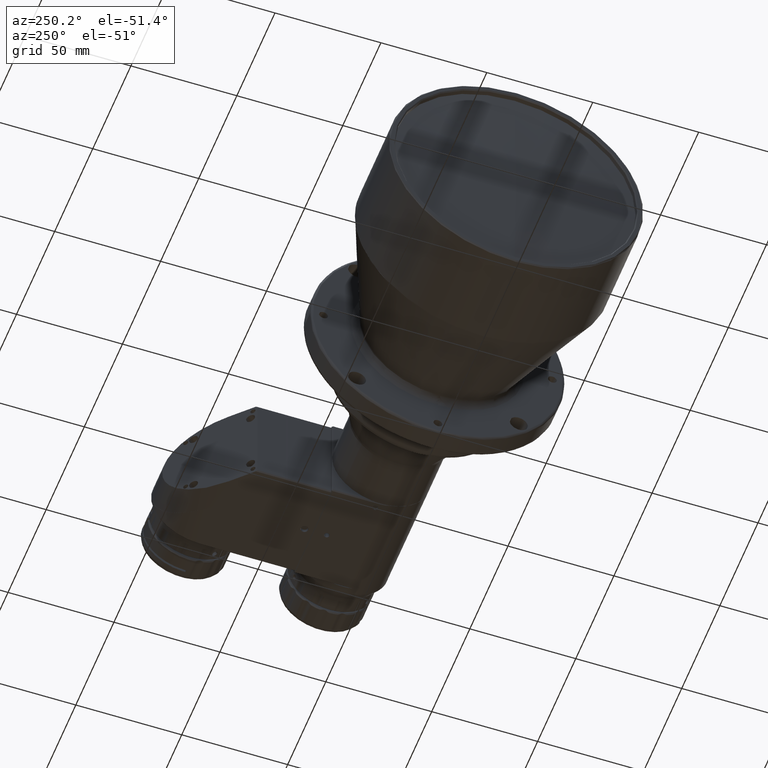
[diagram: clean part render]
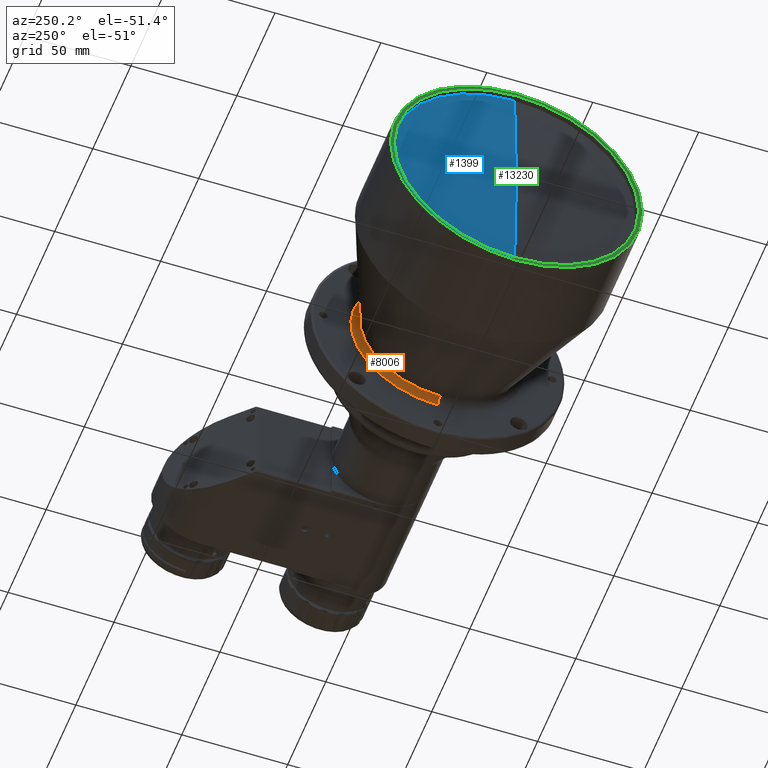
[diagram: same view with three faces highlighted in distinct colors, each labeled with its STEP entity id]
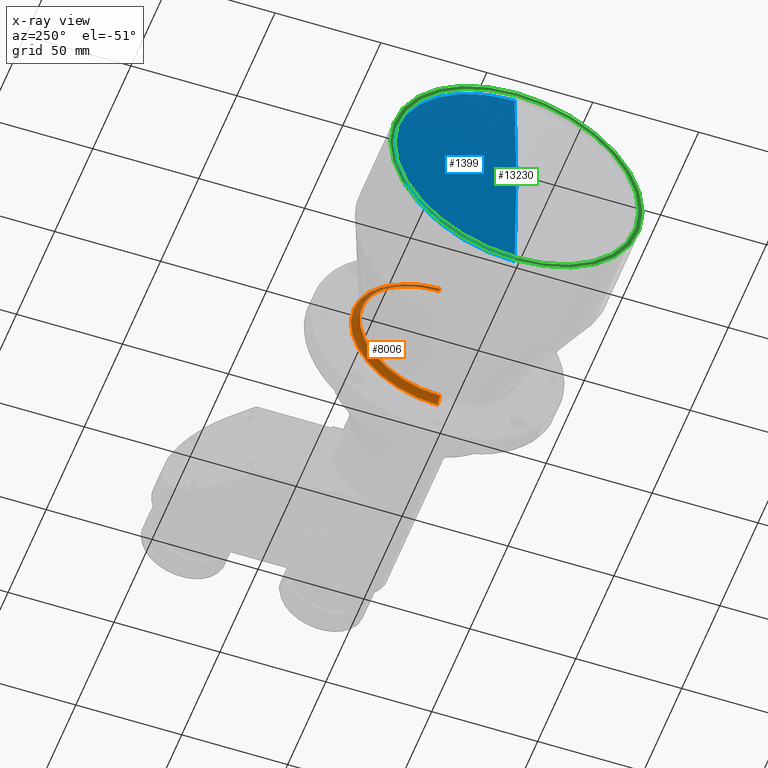
[diagram: x-ray of the same camera — body ghosted, the three highlighted faces saturated]
A machine part, auxiliary view with three faces highlighted in distinct colors.
The next image is the same camera in x-ray (body ghosted, the three faces saturated) — at least one of them is partly hidden behind the body in this view.
Their STEP definitions:

[orange] entity #8006 — the highlighted face is a freeform B-spline surface patch.
#14 = CARTESIAN_POINT ( 'NONE',  ( 103.0000000000000100, 12.45186041448453200, 39.16249284849838800 ) ) ;
#40 = CARTESIAN_POINT ( 'NONE',  ( 100.0000000004045800, 0.0000000000000000000, 0.0000000000000000000 ) ) ;
#466 = CARTESIAN_POINT ( 'NONE',  ( 103.0000000000000300, 11.07125925120583800, -39.57355976065940700 ) ) ;
#722 = CARTESIAN_POINT ( 'NONE',  ( 103.0000000000000000, 21.10166652494948300, -35.26102995712306400 ) ) ;
#792 = CARTESIAN_POINT ( 'NONE',  ( 103.0000000000000100, 33.00234591523061300, -24.48905322541276100 ) ) ;
#861 = CARTESIAN_POINT ( 'NONE',  ( 103.0000000000000300, 36.23421431976152700, -19.38282694814504800 ) ) ;
#928 = CARTESIAN_POINT ( 'NONE',  ( 102.9999999999999900, 39.44665265685453900, -11.52737047924346000 ) ) ;
#994 = CARTESIAN_POINT ( 'NONE',  ( 103.0000000000000300, 21.30325764352278700, -35.13947384457446100 ) ) ;
#1054 = CARTESIAN_POINT ( 'NONE',  ( 103.0000000000000100, 36.28161087332583900, 19.29395844985115700 ) ) ;
#1120 = CARTESIAN_POINT ( 'NONE',  ( 103.0000000000000100, 34.17222401441142000, 22.82407409846492600 ) ) ;
#1149 = VERTEX_POINT ( 'NONE', #16008 ) ;
#1187 = CARTESIAN_POINT ( 'NONE',  ( 103.0000000000000400, 41.09267363664103100, -1.711829738698872600 ) ) ;
#1230 = CARTESIAN_POINT ( 'NONE',  ( 103.1896612680000100, 78.70507050799999100, 39.35253525400000300 ) ) ;
#1259 = CARTESIAN_POINT ( 'NONE',  ( 103.0000000000000100, 29.73031258262090000, 28.38427449937387300 ) ) ;
#1322 = CARTESIAN_POINT ( 'NONE',  ( 103.0000000000000100, 36.35405436380387600, 19.15711342407894700 ) ) ;
#1387 = CARTESIAN_POINT ( 'NONE',  ( 103.0000000000000100, 5.486805652091391000, 40.72474562499926500 ) ) ;
#1451 = CARTESIAN_POINT ( 'NONE',  ( 103.0000000000000100, 21.58831990666038800, 34.96521501237167200 ) ) ;
#1514 = CARTESIAN_POINT ( 'NONE',  ( 103.0000000000000100, 26.58237345541844100, 31.35047855595357500 ) ) ;
#1587 = CARTESIAN_POINT ( 'NONE',  ( 103.0000000000000300, 18.99735675195406900, 36.44017620300168400 ) ) ;
#1644 = CARTESIAN_POINT ( 'NONE',  ( 102.9999999999999900, 11.62455653627539400, 39.41422944751501200 ) ) ;
#1914 = CARTESIAN_POINT ( 'NONE',  ( 103.0000000000000400, 5.438775493817500400, -40.73118799082953200 ) ) ;
#1970 = CARTESIAN_POINT ( 'NONE',  ( 103.0000000000000000, 11.39736278211128200, -39.48052187633278700 ) ) ;
#2164 = CARTESIAN_POINT ( 'NONE',  ( 103.0000000000000300, 5.398206862634004300, -40.73658346149758100 ) ) ;
#2228 = CARTESIAN_POINT ( 'NONE',  ( 103.0000000000000300, 21.90981310867260100, -34.77091790255032300 ) ) ;
#2301 = CARTESIAN_POINT ( 'NONE',  ( 103.0000000000000100, 33.39526951408179700, -23.94640622814623400 ) ) ;
#2370 = CARTESIAN_POINT ( 'NONE',  ( 103.0000000000000400, 37.18699130427030000, -17.51887638046399700 ) ) ;
#2434 = CARTESIAN_POINT ( 'NONE',  ( 103.0000000000000100, 38.17064534091534300, -15.21939089335085900 ) ) ;
#2498 = CARTESIAN_POINT ( 'NONE',  ( 103.0000000000000300, 25.21743819301194400, -32.45280314941988600 ) ) ;
#2567 = CARTESIAN_POINT ( 'NONE',  ( 103.0000000000000000, 35.88467425282466600, 20.03823719307584000 ) ) ;
#2638 = CARTESIAN_POINT ( 'NONE',  ( 103.0000000000000300, 31.17981225498672500, 26.76649114846738100 ) ) ;
#2703 = CARTESIAN_POINT ( 'NONE',  ( 103.0000000000000300, 33.89350075325141600, 23.23451566019590300 ) ) ;
#2739 = CARTESIAN_POINT ( 'NONE',  ( 102.9850124960000000, 0.0000000000000000000, -41.39219680000000800 ) ) ;
#2768 = CARTESIAN_POINT ( 'NONE',  ( 103.0000000000000300, 39.85403728077478300, 10.01380233816537100 ) ) ;
#2836 = CARTESIAN_POINT ( 'NONE',  ( 103.0000000000000000, 41.05274315597169700, 2.137426064923182900 ) ) ;
#2972 = CARTESIAN_POINT ( 'NONE',  ( 103.0000000000000100, 21.48154941155780400, 35.03076346346026100 ) ) ;
#3033 = CARTESIAN_POINT ( 'NONE',  ( 103.0000000000000100, 5.678845890035667300, 40.69849810436001300 ) ) ;
#3094 = CARTESIAN_POINT ( 'NONE',  ( 103.0000000000000000, 11.97973819283290300, 39.30814703153042400 ) ) ;
#3156 = CARTESIAN_POINT ( 'NONE',  ( 103.0000000000000100, 24.90089570934023700, 32.68896633621251600 ) ) ;
#3425 = CARTESIAN_POINT ( 'NONE',  ( 102.9999999999999900, 14.48388822979796100, -38.45562755022420000 ) ) ;
#3473 = ORIENTED_EDGE ( 'NONE', *, *, #5866, .F. ) ;
#3542 = CARTESIAN_POINT ( 'NONE',  ( 103.0000000000000400, 5.426495519375011500, -40.73282501202700000 ) ) ;
#3599 = CARTESIAN_POINT ( 'NONE',  ( 103.0000000000000100, 10.63569206464239200, -39.69396634371084100 ) ) ;
#3734 = CARTESIAN_POINT ( 'NONE',  ( 103.0000000000000000, 21.27122698101970100, -35.15886957330557300 ) ) ;
#3805 = CARTESIAN_POINT ( 'NONE',  ( 103.0000000000000400, 34.23287492760753300, -22.74535213777725000 ) ) ;
#3877 = CARTESIAN_POINT ( 'NONE',  ( 103.0000000000000100, 26.04299384884290100, -31.79996220063489800 ) ) ;
#3944 = CARTESIAN_POINT ( 'NONE',  ( 103.0000000000000300, 17.87221102209973000, -37.00263622422522800 ) ) ;
#4003 = CARTESIAN_POINT ( 'NONE',  ( 103.0000000000000000, 17.97133642652764600, -36.95459786320830600 ) ) ;
#4071 = CARTESIAN_POINT ( 'NONE',  ( 103.0000000000000000, 40.56516480064825500, -6.587552438959387600 ) ) ;
#4134 = CARTESIAN_POINT ( 'NONE',  ( 103.0000000000000100, 39.27721492894020400, 12.13005752073446600 ) ) ;
#4195 = CARTESIAN_POINT ( 'NONE',  ( 103.0000000000000100, 28.02392584311522900, 30.05447260523092700 ) ) ;
#4271 = CARTESIAN_POINT ( 'NONE',  ( 103.0000000000000100, 38.00532072134190300, 15.64847050590658900 ) ) ;
#4338 = CARTESIAN_POINT ( 'NONE',  ( 103.0000000000000100, 33.80809263185116700, 23.35861355072685800 ) ) ;
#4350 = CARTESIAN_POINT ( 'NONE',  ( 102.9999999990893800, 0.0000000000000000000, -39.33533723651777300 ) ) ;
#4412 = CARTESIAN_POINT ( 'NONE',  ( 102.9999999999999900, 22.33043450464212000, 34.49866224046353100 ) ) ;
#4475 = CARTESIAN_POINT ( 'NONE',  ( 103.0000000000000100, 15.68894663627496100, 37.98189142994136300 ) ) ;
#4536 = CARTESIAN_POINT ( 'NONE',  ( 103.0000000000000000, 5.518822618848132000, 40.72041902166068900 ) ) ;
#4601 = CARTESIAN_POINT ( 'NONE',  ( 103.0000000000000100, 20.79777431411249500, 35.44663539392993800 ) ) ;
#4665 = CARTESIAN_POINT ( 'NONE',  ( 102.9999999999999900, 25.14490682120990800, 32.50227002406059300 ) ) ;
#4695 = B_SPLINE_CURVE_WITH_KNOTS ( 'NONE', 3,
 ( #10918, #4940, #6570, #6453, #9656, #12559, #6634, #6508, #2164, #3542, #1914, #4997, #17261, #14067, #3599, #466, #17063, #1970, #5116, #17128, #8096, #11114, #12434, #12629, #8227, #3425, #12682, #14200, #5185, #7980, #15734, #18524, #10990, #12501, #3944, #14475, #4003, #18848, #6763, #5385, #5507, #722, #9860, #3734, #994, #2228, #11240, #12754, #7035, #8297, #14275, #15869, #8551, #2498, #3877, #9794, #8365, #11308, #17596, #16064, #18984, #15939, #5325, #6971, #11450, #5253, #19107, #6896, #15802, #17460, #17331, #792, #2301, #12824, #11516, #17527, #18919, #3805, #19047, #14341, #14546, #6835, #9992, #17395, #861, #11374, #2370, #5446, #15997, #2434, #12896, #14411, #8494, #8432, #9924, #928, #12959, #13024, #16337, #13294, #8758, #14685, #4071, #14616, #5853, #10196, #11787, #1187, #11847, #2836, #17790, #19385, #17658, #5580, #19316, #5646, #8623, #16135, #16200, #16404, #2768, #19171, #4134, #10338, #13360, #7366, #8826, #11717, #11649, #4271, #7102, #10059, #19244, #13096, #1322, #11588, #1054, #2567, #17931, #10127, #1120, #16268, #2703, #17860, #4338, #13229, #17724, #14822, #13163, #2638, #8900, #5710, #7167, #7300, #1259, #8692, #14888, #14757, #4195, #7239, #10269, #5780, #1514, #13487, #4665, #3156, #11985, #10654, #16661, #9017, #15212, #4412, #18185, #1451, #2972, #16533, #7713, #4601, #15147, #1587, #6188, #9149, #10594, #16597, #19518, #16723, #12108, #4475, #7641, #5988, #15028, #7513, #13419, #14959, #18250, #14, #3094, #10529, #1644, #12169, #7577, #13671, #18066, #19450, #18125, #10395, #12043, #3033, #13552, #4536, #1387, #8957, #15087, #13611, #10466 ),
 .UNSPECIFIED., .F., .F.,
 ( 4, 1, 1, 1, 1, 1, 1, 2, 2, 1, 1, 1, 1, 1, 1, 2, 2, 1, 1, 1, 1, 2, 2, 1, 1, 1, 1, 2, 2, 1, 1, 1, 1, 2, 2, 1, 1, 1, 1, 2, 2, 1, 1, 1, 1, 2, 2, 1, 1, 1, 1, 2, 2, 1, 1, 1, 1, 2, 2, 1, 1, 1, 1, 2, 2, 1, 1, 1, 1, 2, 2, 1, 1, 1, 2, 2, 1, 1, 2, 2, 2, 1, 1, 2, 2, 1, 1, 1, 2, 2, 1, 1, 1, 1, 2, 2, 1, 1, 1, 1, 2, 2, 1, 1, 1, 1, 2, 2, 1, 1, 1, 1, 2, 2, 1, 1, 1, 1, 2, 2, 1, 1, 1, 1, 2, 2, 1, 1, 1, 1, 2, 2, 1, 1, 1, 1, 2, 2, 1, 1, 1, 1, 2, 2, 1, 1, 1, 1, 1, 2, 2, 1, 1, 1, 1, 1, 1, 2, 2, 4 ),
 ( 0.0000000000000000000, 0.03125000000000329600, 0.04687500000000494000, 0.05468750000000575900, 0.05859375000000616900, 0.06054687500000637000, 0.06152343750000646000, 0.06201171875000652300, 0.06250000000000657800, 0.09375000000001020000, 0.1093750000000119800, 0.1171875000000128800, 0.1210937500000133100, 0.1230468750000135000, 0.1240234375000135700, 0.1245117187500136000, 0.1250000000000136300, 0.1406250000000147400, 0.1484375000000153200, 0.1523437500000156300, 0.1542968750000157700, 0.1552734375000158200, 0.1562500000000158800, 0.1718750000000156000, 0.1796875000000155400, 0.1835937500000154900, 0.1855468750000154300, 0.1865234375000154300, 0.1875000000000154000, 0.2031250000000142400, 0.2109375000000135700, 0.2148437500000132100, 0.2167968750000131000, 0.2177734375000130500, 0.2187500000000129600, 0.2343750000000114100, 0.2421875000000106300, 0.2460937500000102400, 0.2480468750000101000, 0.2490234375000100500, 0.2500000000000099900, 0.2656250000000097100, 0.2734375000000095500, 0.2773437500000094400, 0.2792968750000094400, 0.2802734375000094400, 0.2812500000000093800, 0.2968750000000086600, 0.3046875000000082700, 0.3085937500000080500, 0.3105468750000079900, 0.3115234375000079900, 0.3125000000000079900, 0.3281250000000079900, 0.3359375000000080500, 0.3398437500000081000, 0.3417968750000080500, 0.3427734375000080500, 0.3437500000000080500, 0.3593750000000078800, 0.3671875000000078300, 0.3710937500000077700, 0.3730468750000077700, 0.3740234375000077700, 0.3750000000000077200, 0.3906250000000082200, 0.3984375000000084400, 0.4023437500000085500, 0.4042968750000086000, 0.4052734375000086000, 0.4062500000000086000, 0.4218750000000081600, 0.4296875000000078800, 0.4335937500000078300, 0.4355468750000077700, 0.4375000000000076600, 0.4531250000000072200, 0.4609375000000069900, 0.4648437500000068300, 0.4687500000000067200, 0.5000000000000057700, 0.5156250000000054400, 0.5234375000000052200, 0.5273437500000051100, 0.5312500000000050000, 0.5468750000000046600, 0.5546875000000044400, 0.5585937500000043300, 0.5605468750000043300, 0.5625000000000042200, 0.5781250000000037700, 0.5859375000000036600, 0.5898437500000034400, 0.5917968750000033300, 0.5927734375000033300, 0.5937500000000033300, 0.6093750000000023300, 0.6171875000000017800, 0.6210937500000015500, 0.6230468750000014400, 0.6240234375000013300, 0.6250000000000012200, 0.6406250000000007800, 0.6484375000000004400, 0.6523437500000003300, 0.6542968750000002200, 0.6552734375000002200, 0.6562500000000001100, 0.6718749999999978900, 0.6796874999999968900, 0.6835937499999963400, 0.6855468749999961100, 0.6865234374999961100, 0.6874999999999961100, 0.7031249999999948900, 0.7109374999999941200, 0.7148437499999937800, 0.7167968749999936700, 0.7177734374999935600, 0.7187499999999934500, 0.7343749999999923400, 0.7421874999999916700, 0.7460937499999914500, 0.7480468749999913400, 0.7490234374999913400, 0.7499999999999912300, 0.7656249999999902300, 0.7734374999999897900, 0.7773437499999894500, 0.7792968749999893400, 0.7802734374999892300, 0.7812499999999891200, 0.7968749999999881200, 0.8046874999999875700, 0.8085937499999873400, 0.8105468749999872300, 0.8115234374999871200, 0.8124999999999870100, 0.8281249999999857900, 0.8359374999999851200, 0.8398437499999849000, 0.8417968749999847900, 0.8427734374999846800, 0.8437499999999845700, 0.8593749999999826800, 0.8671874999999819000, 0.8710937499999815700, 0.8730468749999812400, 0.8740234374999811300, 0.8745117187499812400, 0.8749999999999812400, 0.9062499999999854600, 0.9218749999999874500, 0.9296874999999884500, 0.9335937499999890100, 0.9355468749999892300, 0.9365234374999893400, 0.9370117187499893400, 0.9374999999999894500, 1.000000000000000000 ),
 .UNSPECIFIED. ) ;
#4787 = CARTESIAN_POINT ( 'NONE',  ( 101.7573593130876000, 0.0000000000000000000, 38.09269655076752800 ) ) ;
#4940 = CARTESIAN_POINT ( 'NONE',  ( 103.0000000000000300, 0.9130856941265490500, -41.09269654883680500 ) ) ;
#4997 = CARTESIAN_POINT ( 'NONE',  ( 103.0000000000000100, 6.479245693843462400, -40.59185244117472300 ) ) ;
#5116 = CARTESIAN_POINT ( 'NONE',  ( 103.0000000000000100, 11.44390815373942300, -39.46703553949768700 ) ) ;
#5185 = CARTESIAN_POINT ( 'NONE',  ( 103.0000000000000300, 14.67995774404833600, -38.38111400179307300 ) ) ;
#5253 = CARTESIAN_POINT ( 'NONE',  ( 103.0000000000000300, 30.74786363766354200, -27.26157236339801000 ) ) ;
#5325 = CARTESIAN_POINT ( 'NONE',  ( 103.0000000000000100, 29.21804131528100600, -28.91132181355337500 ) ) ;
#5385 = CARTESIAN_POINT ( 'NONE',  ( 103.0000000000000100, 20.38530250226092400, -35.68228411866869000 ) ) ;
#5446 = CARTESIAN_POINT ( 'NONE',  ( 103.0000000000000100, 37.76358856638624000, -16.21160788561432800 ) ) ;
#5507 = CARTESIAN_POINT ( 'NONE',  ( 103.0000000000000300, 20.86363709525933200, -35.40285692096939100 ) ) ;
#5580 = CARTESIAN_POINT ( 'NONE',  ( 103.0000000000000000, 40.79934294524921500, 4.905932325270145000 ) ) ;
#5646 = CARTESIAN_POINT ( 'NONE',  ( 103.0000000000000100, 40.46979620359993400, 7.216092130534787200 ) ) ;
#5710 = CARTESIAN_POINT ( 'NONE',  ( 103.0000000000000100, 31.02318115129844100, 26.94761882022218200 ) ) ;
#5780 = CARTESIAN_POINT ( 'NONE',  ( 102.9999999999999900, 27.37338291838373600, 30.65618217966901300 ) ) ;
#5853 = CARTESIAN_POINT ( 'NONE',  ( 103.0000000000000000, 40.71839389231417500, -5.537804444222700800 ) ) ;
#5866 = EDGE_CURVE ( 'NONE', #17942, #12615, #4695, .T. ) ;
#5935 = EDGE_CURVE ( 'NONE', #12615, #15910, #11655, .T. ) ;
#5988 = CARTESIAN_POINT ( 'NONE',  ( 102.9999999999999900, 14.95927282519511300, 38.27322240187780300 ) ) ;
#6188 = CARTESIAN_POINT ( 'NONE',  ( 103.0000000000000100, 18.50368469778907300, 36.69151552003668800 ) ) ;
#6453 = CARTESIAN_POINT ( 'NONE',  ( 103.0000000000000400, 3.868995683959942400, -40.91465850147368900 ) ) ;
#6508 = CARTESIAN_POINT ( 'NONE',  ( 103.0000000000000300, 5.355772429070537300, -40.74219894013576500 ) ) ;
#6570 = CARTESIAN_POINT ( 'NONE',  ( 103.0000000000000300, 2.279747805679462700, -41.04724002610578300 ) ) ;
#6634 = CARTESIAN_POINT ( 'NONE',  ( 103.0000000000000100, 5.256748611591936200, -40.75514635465064100 ) ) ;
#6763 = CARTESIAN_POINT ( 'NONE',  ( 103.0000000000000300, 19.41953038179141800, -36.22423159409382300 ) ) ;
#6835 = CARTESIAN_POINT ( 'NONE',  ( 103.0000000000000100, 36.09366928742099400, -19.64367574641171600 ) ) ;
#6896 = CARTESIAN_POINT ( 'NONE',  ( 103.0000000000000300, 30.89973374031323100, -27.08907904146797600 ) ) ;
#6971 = CARTESIAN_POINT ( 'NONE',  ( 103.0000000000000100, 30.10146378886854300, -27.97766575033118400 ) ) ;
#7035 = CARTESIAN_POINT ( 'NONE',  ( 103.0000000000000100, 24.18578982276922000, -33.22207461278763700 ) ) ;
#7102 = CARTESIAN_POINT ( 'NONE',  ( 103.0000000000000100, 37.52778626603047500, 16.77643135730163600 ) ) ;
#7167 = CARTESIAN_POINT ( 'NONE',  ( 103.0000000000000000, 30.99046688083475600, 26.98523180537525300 ) ) ;
#7239 = CARTESIAN_POINT ( 'NONE',  ( 103.0000000000000000, 27.95661690488812900, 30.11709354888907300 ) ) ;
#7273 = CARTESIAN_POINT ( 'NONE',  ( 99.70049975000000600, 0.0000000000000000000, -38.10768405399998900 ) ) ;
#7300 = CARTESIAN_POINT ( 'NONE',  ( 103.0000000000000400, 30.47679391700521000, 27.57383061880173600 ) ) ;
#7366 = CARTESIAN_POINT ( 'NONE',  ( 103.0000000000000300, 38.43276524379894000, 14.54480847590796200 ) ) ;
#7412 = CARTESIAN_POINT ( 'NONE',  ( 101.7401612960000000, 75.80607056300000600, -37.90303528200001200 ) ) ;
#7513 = CARTESIAN_POINT ( 'NONE',  ( 103.0000000000000000, 14.78477659527123600, 38.34085845458132300 ) ) ;
#7563 =( BOUNDED_CURVE ( )  B_SPLINE_CURVE ( 3, ( #18262, #15287, #4350, #8836 ),
 .UNSPECIFIED., .F., .T. ) 
 B_SPLINE_CURVE_WITH_KNOTS ( ( 4, 4 ),
 ( 0.06314145689937623900, 0.9368585429999997100 ),
 .UNSPECIFIED. ) 
 CURVE ( )  GEOMETRIC_REPRESENTATION_ITEM ( )  RATIONAL_B_SPLINE_CURVE ( ( 0.9565783022305275300, 0.7697947703959753300, 0.7697947703744638700, 0.9565783021659932700 ) ) 
 REPRESENTATION_ITEM ( '' )  );
#7577 = CARTESIAN_POINT ( 'NONE',  ( 103.0000000000000300, 11.53985229953795900, 39.43908970238308600 ) ) ;
#7641 = CARTESIAN_POINT ( 'NONE',  ( 103.0000000000000400, 15.20307587115874300, 38.17742010503083300 ) ) ;
#7713 = CARTESIAN_POINT ( 'NONE',  ( 102.9999999999999900, 21.37276006818278900, 35.09724150136322200 ) ) ;
#7980 = CARTESIAN_POINT ( 'NONE',  ( 103.0000000000000100, 15.27382882356575100, -38.15335938839153600 ) ) ;
#8006 = ADVANCED_FACE ( 'NONE', ( #19123 ), #12014, .F. ) ;
#8096 = CARTESIAN_POINT ( 'NONE',  ( 103.0000000000000100, 11.48901463646753900, -39.45392940700934800 ) ) ;
#8227 = CARTESIAN_POINT ( 'NONE',  ( 103.0000000000000100, 14.25248754508452500, -38.54232934518657300 ) ) ;
#8297 = CARTESIAN_POINT ( 'NONE',  ( 103.0000000000000000, 24.42119867855778300, -33.04885593785485300 ) ) ;
#8365 = CARTESIAN_POINT ( 'NONE',  ( 103.0000000000000300, 27.43511860491526000, -30.59376048393465900 ) ) ;
#8432 = CARTESIAN_POINT ( 'NONE',  ( 102.9999999999999900, 38.60447108242301800, -14.10690722418499000 ) ) ;
#8494 = CARTESIAN_POINT ( 'NONE',  ( 103.0000000000000300, 38.28255848346701400, -14.93512980030486000 ) ) ;
#8551 = CARTESIAN_POINT ( 'NONE',  ( 103.0000000000000600, 24.62050416254338000, -32.90049186967253500 ) ) ;
#8623 = CARTESIAN_POINT ( 'NONE',  ( 103.0000000000000100, 40.17166899927796900, 8.669801980042752400 ) ) ;
#8692 = CARTESIAN_POINT ( 'NONE',  ( 103.0000000000000100, 28.82214973855926800, 29.29388384728306600 ) ) ;
#8758 = CARTESIAN_POINT ( 'NONE',  ( 103.0000000000000300, 40.03737023638657200, -9.291979890430592800 ) ) ;
#8826 = CARTESIAN_POINT ( 'NONE',  ( 103.0000000000000100, 38.37679122917946000, 14.69129953828651800 ) ) ;
#8836 = CARTESIAN_POINT ( 'NONE',  ( 103.0000000000733700, 0.0000000000000000000, -41.09269653973836300 ) ) ;
#8868 = CARTESIAN_POINT ( 'NONE',  ( 101.7401612960000000, 75.80607056300000600, 37.90303528200001200 ) ) ;
#8900 = CARTESIAN_POINT ( 'NONE',  ( 102.9999999999999900, 31.08591298868354300, 26.87522907264469700 ) ) ;
#8957 = CARTESIAN_POINT ( 'NONE',  ( 103.0000000000000000, 5.468923423732464400, 40.72715034520822300 ) ) ;
#9017 = CARTESIAN_POINT ( 'NONE',  ( 103.0000000000000100, 24.12122409741108300, 33.27496317919634100 ) ) ;
#9149 = CARTESIAN_POINT ( 'NONE',  ( 103.0000000000000300, 18.25568591834064600, 36.81508536145121000 ) ) ;
#9388 = CIRCLE ( 'NONE', #10083, 38.09269654970740500 ) ;
#9656 = CARTESIAN_POINT ( 'NONE',  ( 103.0000000000000600, 4.662321810134045600, -40.82848051046278200 ) ) ;
#9794 = CARTESIAN_POINT ( 'NONE',  ( 103.0000000000000100, 26.97608631876082800, -31.00189725200870300 ) ) ;
#9860 = CARTESIAN_POINT ( 'NONE',  ( 103.0000000000000300, 21.20343530907186700, -35.19979410868960200 ) ) ;
#9924 = CARTESIAN_POINT ( 'NONE',  ( 103.0000000000000300, 39.02255492604989200, -12.92586883328076100 ) ) ;
#9992 = CARTESIAN_POINT ( 'NONE',  ( 103.0000000000000100, 36.16443821540092100, -19.51270133806985300 ) ) ;
#10059 = CARTESIAN_POINT ( 'NONE',  ( 103.0000000000000300, 36.91243365610307600, 18.06591051211808400 ) ) ;
#10083 = AXIS2_PLACEMENT_3D ( 'NONE', #40, #10556, #13944 ) ;
#10096 = CARTESIAN_POINT ( 'NONE',  ( 100.0000000009746500, -3.337781034657261800E-026, 38.09269654982597300 ) ) ;
#10127 = CARTESIAN_POINT ( 'NONE',  ( 103.0000000000000300, 34.55501836730473300, 22.24496713412483100 ) ) ;
#10196 = CARTESIAN_POINT ( 'NONE',  ( 103.0000000000000100, 40.74626293167165900, -5.328913505903095400 ) ) ;
#10269 = CARTESIAN_POINT ( 'NONE',  ( 103.0000000000000100, 27.92137650895931200, 30.14976493712530100 ) ) ;
#10311 = CARTESIAN_POINT ( 'NONE',  ( 101.7401612960000100, 0.0000000000000000000, 37.90303528200001200 ) ) ;
#10338 = CARTESIAN_POINT ( 'NONE',  ( 103.0000000000000100, 38.81062483540663500, 13.51495831865995200 ) ) ;
#10369 = CARTESIAN_POINT ( 'NONE',  ( 99.70049975000000600, 76.21536810799997900, 38.10768405399998900 ) ) ;
#10395 = CARTESIAN_POINT ( 'NONE',  ( 103.0000000000000100, 6.349700858936549800, 40.60061837426423600 ) ) ;
#10466 = CARTESIAN_POINT ( 'NONE',  ( 103.0000000000733700, 0.0000000000000000000, 41.09269653973836300 ) ) ;
#10529 = CARTESIAN_POINT ( 'NONE',  ( 102.9999999999999900, 11.74305423039633900, 39.37916942516675100 ) ) ;
#10556 = DIRECTION ( 'NONE',  ( 1.000000000000000000, 1.821581177594080900E-016, 0.0000000000000000000 ) ) ;
#10594 = CARTESIAN_POINT ( 'NONE',  ( 102.9999999999999900, 18.14915156592720900, 36.86759390410680500 ) ) ;
#10654 = CARTESIAN_POINT ( 'NONE',  ( 103.0000000000000100, 24.72583300931569600, 32.82140684639193000 ) ) ;
#10776 = CARTESIAN_POINT ( 'NONE',  ( 103.0000000000733700, 0.0000000000000000000, 41.09269653973836300 ) ) ;
#10918 = CARTESIAN_POINT ( 'NONE',  ( 103.0000000000733700, 0.0000000000000000000, -41.09269653973836300 ) ) ;
#10990 = CARTESIAN_POINT ( 'NONE',  ( 102.9999999999999700, 17.53468659180612800, -37.16427980436049000 ) ) ;
#11114 = CARTESIAN_POINT ( 'NONE',  ( 103.0000000000000000, 12.04804774027811700, -39.29088564285085300 ) ) ;
#11240 = CARTESIAN_POINT ( 'NONE',  ( 102.9999999999999900, 22.75255497663618700, -34.23030616147769200 ) ) ;
#11308 = CARTESIAN_POINT ( 'NONE',  ( 103.0000000000000000, 27.66275626079130500, -30.38741602645743000 ) ) ;
#11374 = CARTESIAN_POINT ( 'NONE',  ( 103.0000000000000400, 36.64301910985351200, -18.61634122037351700 ) ) ;
#11450 = CARTESIAN_POINT ( 'NONE',  ( 102.9999999999999900, 30.53393673629334200, -27.50177981042490700 ) ) ;
#11516 = CARTESIAN_POINT ( 'NONE',  ( 103.0000000000000100, 33.67139230642119700, -23.55523876732644700 ) ) ;
#11556 = CARTESIAN_POINT ( 'NONE',  ( 102.9850124960000000, 0.0000000000000000000, 41.39219680000000800 ) ) ;
#11588 = CARTESIAN_POINT ( 'NONE',  ( 103.0000000000000100, 36.30628798770168700, 19.24748558460201100 ) ) ;
#11649 = CARTESIAN_POINT ( 'NONE',  ( 103.0000000000000300, 38.32000538103459100, 14.83878209519726700 ) ) ;
#11655 =( BOUNDED_CURVE ( )  B_SPLINE_CURVE ( 3, ( #10776, #12350, #4787, #13989 ),
 .UNSPECIFIED., .F., .F. ) 
 B_SPLINE_CURVE_WITH_KNOTS ( ( 4, 4 ),
 ( 0.06314145699999865200, 0.9368585430503174600 ),
 .UNSPECIFIED. ) 
 CURVE ( )  GEOMETRIC_REPRESENTATION_ITEM ( )  RATIONAL_B_SPLINE_CURVE ( ( 0.9565783021659942700, 0.7697947703852183700, 0.7697947703959749900, 0.9565783021982639000 ) ) 
 REPRESENTATION_ITEM ( '' )  );
#11717 = CARTESIAN_POINT ( 'NONE',  ( 103.0000000000000400, 38.33928530772254100, 14.78890020952395900 ) ) ;
#11787 = CARTESIAN_POINT ( 'NONE',  ( 103.0000000000000100, 40.98607778625248000, -3.418095089214936000 ) ) ;
#11847 = CARTESIAN_POINT ( 'NONE',  ( 103.0000000000000300, 41.09270800428330300, 0.8559148693494665900 ) ) ;
#11985 = CARTESIAN_POINT ( 'NONE',  ( 103.0000000000000300, 24.79591237511534600, 32.76849515986138100 ) ) ;
#12014 =( BOUNDED_SURFACE ( )  B_SPLINE_SURFACE ( 3, 3, ( 
 ( #11556, #17630, #17834, #2739 ),
 ( #19424, #1230, #19288, #14857 ),
 ( #10311, #8868, #7412, #19487 ),
 ( #16236, #10369, #13331, #7273 ) ),
 .UNSPECIFIED., .F., .F., .F. ) 
 B_SPLINE_SURFACE_WITH_KNOTS ( ( 4, 4 ),
 ( 4, 4 ),
 ( 0.0000000000000000000, 1.000000000000000000 ),
 ( 0.0000000000000000000, 1.000000000000000000 ),
 .UNSPECIFIED. ) 
 GEOMETRIC_REPRESENTATION_ITEM ( )  RATIONAL_B_SPLINE_SURFACE ( (
 ( 1.000000000000000000, 0.3333333333333330400, 0.3333333333333330400, 1.000000000000000000),
 ( 0.7553208711179730800, 0.2517736237059909900, 0.2517736237059909900, 0.7553208711179730800),
 ( 0.7553208711179730800, 0.2517736237059909900, 0.2517736237059909900, 0.7553208711179730800),
 ( 1.000000000000000000, 0.3333333333333330400, 0.3333333333333330400, 1.000000000000000000) ) ) 
 REPRESENTATION_ITEM ( '' )  SURFACE ( )  );
#12043 = CARTESIAN_POINT ( 'NONE',  ( 103.0000000000000000, 5.902686632704943600, 40.66691168469637300 ) ) ;
#12108 = CARTESIAN_POINT ( 'NONE',  ( 103.0000000000000100, 16.65374685926320500, 37.57513775418052400 ) ) ;
#12169 = CARTESIAN_POINT ( 'NONE',  ( 103.0000000000000100, 11.57373844317301900, 39.42915849113499900 ) ) ;
#12350 = CARTESIAN_POINT ( 'NONE',  ( 102.9999999990893700, 0.0000000000000000000, 39.33533723664352500 ) ) ;
#12434 = CARTESIAN_POINT ( 'NONE',  ( 102.9999999999999900, 12.85573430824822700, -39.03714935791520400 ) ) ;
#12501 = CARTESIAN_POINT ( 'NONE',  ( 103.0000000000000300, 17.77108002992615700, -37.05142526219152900 ) ) ;
#12524 = ORIENTED_EDGE ( 'NONE', *, *, #5935, .F. ) ;
#12559 = CARTESIAN_POINT ( 'NONE',  ( 103.0000000000000300, 5.058660419979557500, -40.78041970778361500 ) ) ;
#12615 = VERTEX_POINT ( 'NONE', #18009 ) ;
#12629 = CARTESIAN_POINT ( 'NONE',  ( 103.0000000000000400, 13.78849344300686800, -38.71210568410481300 ) ) ;
#12682 = CARTESIAN_POINT ( 'NONE',  ( 103.0000000000000000, 14.58293215903397700, -38.41808100406105100 ) ) ;
#12754 = CARTESIAN_POINT ( 'NONE',  ( 103.0000000000000100, 23.71200329527759700, -33.56407189109506100 ) ) ;
#12824 = CARTESIAN_POINT ( 'NONE',  ( 103.0000000000000100, 33.58896970934389300, -23.67291427391244300 ) ) ;
#12896 = CARTESIAN_POINT ( 'NONE',  ( 103.0000000000000000, 38.22698265355822400, -15.07680520723277300 ) ) ;
#12959 = CARTESIAN_POINT ( 'NONE',  ( 103.0000000000000100, 39.64278483390020800, -10.82296624439589300 ) ) ;
#13024 = CARTESIAN_POINT ( 'NONE',  ( 103.0000000000000100, 39.72343076227191700, -10.51997405992646000 ) ) ;
#13096 = CARTESIAN_POINT ( 'NONE',  ( 103.0000000000000100, 36.42544397671283500, 19.02143699056304300 ) ) ;
#13163 = CARTESIAN_POINT ( 'NONE',  ( 103.0000000000000100, 31.39752111460648700, 26.51169620570919600 ) ) ;
#13229 = CARTESIAN_POINT ( 'NONE',  ( 103.0000000000000600, 33.34460808816349700, 24.02778679276917400 ) ) ;
#13294 = CARTESIAN_POINT ( 'NONE',  ( 103.0000000000000300, 39.80217284149829700, -10.21801848106636600 ) ) ;
#13331 = CARTESIAN_POINT ( 'NONE',  ( 99.70049975000000600, 76.21536810799997900, -38.10768405399998900 ) ) ;
#13360 = CARTESIAN_POINT ( 'NONE',  ( 103.0000000000000100, 38.56137720494984200, 14.20236560836779000 ) ) ;
#13419 = CARTESIAN_POINT ( 'NONE',  ( 103.0000000000000000, 14.74784320318015100, 38.35507841352539100 ) ) ;
#13487 = CARTESIAN_POINT ( 'NONE',  ( 103.0000000000000100, 25.62912903966221700, 32.12436117187170500 ) ) ;
#13552 = CARTESIAN_POINT ( 'NONE',  ( 103.0000000000000300, 5.566842111312660700, 40.71390125530369600 ) ) ;
#13611 = CARTESIAN_POINT ( 'NONE',  ( 103.0000000000000000, 1.826512721685820800, 41.09269654883678400 ) ) ;
#13671 = CARTESIAN_POINT ( 'NONE',  ( 103.0000000000000000, 11.52145910082044200, 39.44446645765261600 ) ) ;
#13944 = DIRECTION ( 'NONE',  ( 0.0000000000000000000, 1.000000000000000000, 0.0000000000000000000 ) ) ;
#13989 = CARTESIAN_POINT ( 'NONE',  ( 100.0000000009746500, -3.337781034657261800E-026, 38.09269654982597300 ) ) ;
#14067 = CARTESIAN_POINT ( 'NONE',  ( 102.9999999999999900, 9.761943478865836400, -39.92228603763960800 ) ) ;
#14200 = CARTESIAN_POINT ( 'NONE',  ( 103.0000000000000100, 14.64893304679488000, -38.39296361016642600 ) ) ;
#14275 = CARTESIAN_POINT ( 'NONE',  ( 103.0000000000000100, 24.52177010076208000, -32.97414364093104700 ) ) ;
#14341 = CARTESIAN_POINT ( 'NONE',  ( 103.0000000000000300, 35.58704915216293300, -20.55358253918061400 ) ) ;
#14411 = CARTESIAN_POINT ( 'NONE',  ( 103.0000000000000300, 38.26436813292518500, -14.98166804491509800 ) ) ;
#14475 = CARTESIAN_POINT ( 'NONE',  ( 103.0000000000000100, 17.93959157659177000, -36.97001624211253600 ) ) ;
#14476 = CARTESIAN_POINT ( 'NONE',  ( 103.0000000000733700, 0.0000000000000000000, -41.09269653973836300 ) ) ;
#14546 = CARTESIAN_POINT ( 'NONE',  ( 103.0000000000000100, 35.92693641174421500, -19.94829497554888000 ) ) ;
#14592 = EDGE_LOOP ( 'NONE', ( #12524, #3473, #19330, #14966 ) ) ;
#14616 = CARTESIAN_POINT ( 'NONE',  ( 103.0000000000000400, 40.65903839917795200, -5.958076470070161600 ) ) ;
#14685 = CARTESIAN_POINT ( 'NONE',  ( 103.0000000000000100, 40.31224389230175800, -8.049805210527280200 ) ) ;
#14757 = CARTESIAN_POINT ( 'NONE',  ( 103.0000000000000100, 28.12472287566148000, 29.96038088388317200 ) ) ;
#14822 = CARTESIAN_POINT ( 'NONE',  ( 103.0000000000000100, 31.82738112016172800, 25.99781384148206700 ) ) ;
#14857 = CARTESIAN_POINT ( 'NONE',  ( 103.1896612680000200, 0.0000000000000000000, -39.35253525400000300 ) ) ;
#14888 = CARTESIAN_POINT ( 'NONE',  ( 103.0000000000000100, 28.35875132804186900, 29.73971139304807600 ) ) ;
#14959 = CARTESIAN_POINT ( 'NONE',  ( 103.0000000000000400, 14.18766147745669800, 38.56992880067453900 ) ) ;
#14966 = ORIENTED_EDGE ( 'NONE', *, *, #17693, .T. ) ;
#15028 = CARTESIAN_POINT ( 'NONE',  ( 103.0000000000000000, 14.85459987762380500, 38.31386009180558700 ) ) ;
#15044 = EDGE_CURVE ( 'NONE', #1149, #17942, #7563, .T. ) ;
#15087 = CARTESIAN_POINT ( 'NONE',  ( 103.0000000000000000, 3.644773630907226700, 40.97147915488740500 ) ) ;
#15147 = CARTESIAN_POINT ( 'NONE',  ( 103.0000000000000100, 19.97539884135684600, 35.92069903210799000 ) ) ;
#15212 = CARTESIAN_POINT ( 'NONE',  ( 103.0000000000000400, 23.30584365465392700, 33.85602223981770500 ) ) ;
#15287 = CARTESIAN_POINT ( 'NONE',  ( 101.7573593129445300, 0.0000000000000000000, -38.09269655062443100 ) ) ;
#15734 = CARTESIAN_POINT ( 'NONE',  ( 103.0000000000000400, 16.10453451773010500, -37.81378375764101200 ) ) ;
#15802 = CARTESIAN_POINT ( 'NONE',  ( 103.0000000000000000, 30.92876572382806400, -27.05593101024033900 ) ) ;
#15869 = CARTESIAN_POINT ( 'NONE',  ( 103.0000000000000600, 24.58874702947171200, -32.92422972699234400 ) ) ;
#15910 = VERTEX_POINT ( 'NONE', #10096 ) ;
#15939 = CARTESIAN_POINT ( 'NONE',  ( 103.0000000000000300, 28.42914791722685000, -29.68054275358893400 ) ) ;
#15997 = CARTESIAN_POINT ( 'NONE',  ( 103.0000000000000100, 38.03737795626828700, -15.55125042611737900 ) ) ;
#16008 = CARTESIAN_POINT ( 'NONE',  ( 100.0000000007710500, -2.225229488964115700E-026, -38.09269654982597300 ) ) ;
#16064 = CARTESIAN_POINT ( 'NONE',  ( 103.0000000000000300, 27.82459424635948900, -30.23910586043835000 ) ) ;
#16135 = CARTESIAN_POINT ( 'NONE',  ( 103.0000000000000300, 40.00564193102403000, 9.393511957838612100 ) ) ;
#16200 = CARTESIAN_POINT ( 'NONE',  ( 103.0000000000000000, 39.93085244475239600, 9.702999459688671300 ) ) ;
#16236 = CARTESIAN_POINT ( 'NONE',  ( 99.70049975000000600, 0.0000000000000000000, 38.10768405399998900 ) ) ;
#16268 = CARTESIAN_POINT ( 'NONE',  ( 103.0000000000000100, 33.97760152808184100, 23.11167593806249000 ) ) ;
#16337 = CARTESIAN_POINT ( 'NONE',  ( 103.0000000000000400, 39.77643677697894000, -10.31773379133593600 ) ) ;
#16404 = CARTESIAN_POINT ( 'NONE',  ( 103.0000000000000100, 39.88018500313832200, 9.909174701543088700 ) ) ;
#16533 = CARTESIAN_POINT ( 'NONE',  ( 103.0000000000000000, 21.41029726015965200, 35.07435748371946000 ) ) ;
#16597 = CARTESIAN_POINT ( 'NONE',  ( 103.0000000000000100, 18.07807329515797400, 36.90249960791992800 ) ) ;
#16661 = CARTESIAN_POINT ( 'NONE',  ( 102.9999999999999900, 24.68901754351842100, 32.84910686781149300 ) ) ;
#16723 = CARTESIAN_POINT ( 'NONE',  ( 103.0000000000000100, 17.46881909512019200, 37.19958375967363700 ) ) ;
#17063 = CARTESIAN_POINT ( 'NONE',  ( 103.0000000000000300, 11.28871606790632500, -39.51179478511196000 ) ) ;
#17128 = CARTESIAN_POINT ( 'NONE',  ( 103.0000000000000100, 11.47493451129411400, -39.45802605679784100 ) ) ;
#17261 = CARTESIAN_POINT ( 'NONE',  ( 103.0000000000000400, 8.003989456714103700, -40.32895153680110700 ) ) ;
#17331 = CARTESIAN_POINT ( 'NONE',  ( 103.0000000000000100, 32.19440588422037300, -25.55699957514196900 ) ) ;
#17395 = CARTESIAN_POINT ( 'NONE',  ( 103.0000000000000400, 36.21146460766782800, -19.42529099692187300 ) ) ;
#17460 = CARTESIAN_POINT ( 'NONE',  ( 103.0000000000000300, 31.46401242911225200, -26.44264334096030200 ) ) ;
#17527 = CARTESIAN_POINT ( 'NONE',  ( 103.0000000000000300, 33.72620919951254600, -23.47668516981193700 ) ) ;
#17596 = CARTESIAN_POINT ( 'NONE',  ( 103.0000000000000000, 27.75991272319511100, -30.29849495751570000 ) ) ;
#17630 = CARTESIAN_POINT ( 'NONE',  ( 102.9850124960000000, 82.78439359900002600, 41.39219680000000800 ) ) ;
#17658 = CARTESIAN_POINT ( 'NONE',  ( 103.0000000000000000, 40.82454675685617900, 4.691692678900373900 ) ) ;
#17693 = EDGE_CURVE ( 'NONE', #1149, #15910, #9388, .T. ) ;
#17724 = CARTESIAN_POINT ( 'NONE',  ( 102.9999999999999900, 32.66487027653528200, 24.95287919818437300 ) ) ;
#17790 = CARTESIAN_POINT ( 'NONE',  ( 103.0000000000000300, 40.93614894337580500, 3.628390519971005800 ) ) ;
#17834 = CARTESIAN_POINT ( 'NONE',  ( 102.9850124960000000, 82.78439359900002600, -41.39219680000000800 ) ) ;
#17860 = CARTESIAN_POINT ( 'NONE',  ( 103.0000000000000100, 33.83727998384620200, 23.31631587292425000 ) ) ;
#17931 = CARTESIAN_POINT ( 'NONE',  ( 103.0000000000000000, 35.29480459402786600, 21.07114006486461100 ) ) ;
#17942 = VERTEX_POINT ( 'NONE', #14476 ) ;
#18009 = CARTESIAN_POINT ( 'NONE',  ( 103.0000000000733700, 0.0000000000000000000, 41.09269653973836300 ) ) ;
#18066 = CARTESIAN_POINT ( 'NONE',  ( 103.0000000000000100, 10.51369472841777900, 39.73841135764819700 ) ) ;
#18125 = CARTESIAN_POINT ( 'NONE',  ( 103.0000000000000100, 7.241060274971754800, 40.45554986898049100 ) ) ;
#18185 = CARTESIAN_POINT ( 'NONE',  ( 103.0000000000000100, 21.83669693793743600, 34.81116668160004900 ) ) ;
#18250 = CARTESIAN_POINT ( 'NONE',  ( 102.9999999999999900, 13.39112204490231800, 38.85674689939696000 ) ) ;
#18262 = CARTESIAN_POINT ( 'NONE',  ( 100.0000000007710500, -2.225229488964115700E-026, -38.09269654982597300 ) ) ;
#18524 = CARTESIAN_POINT ( 'NONE',  ( 103.0000000000000100, 17.06021522337238500, -37.38604270302229800 ) ) ;
#18848 = CARTESIAN_POINT ( 'NONE',  ( 103.0000000000000000, 18.57612067657876400, -36.65977471021796000 ) ) ;
#18919 = CARTESIAN_POINT ( 'NONE',  ( 103.0000000000000100, 33.75257595438591800, -23.43876571666384800 ) ) ;
#18984 = CARTESIAN_POINT ( 'NONE',  ( 103.0000000000000100, 27.85539119653162700, -30.21074240125530600 ) ) ;
#19047 = CARTESIAN_POINT ( 'NONE',  ( 103.0000000000000100, 34.88158860008939400, -21.74835408787416200 ) ) ;
#19107 = CARTESIAN_POINT ( 'NONE',  ( 103.0000000000000100, 30.83905168703456900, -27.15814106958497100 ) ) ;
#19123 = FACE_OUTER_BOUND ( 'NONE', #14592, .T. ) ;
#19171 = CARTESIAN_POINT ( 'NONE',  ( 103.0000000000000000, 39.62245472217465200, 10.92570903363857200 ) ) ;
#19244 = CARTESIAN_POINT ( 'NONE',  ( 103.0000000000000100, 36.59020008145668600, 18.70403129657351800 ) ) ;
#19288 = CARTESIAN_POINT ( 'NONE',  ( 103.1896612680000100, 78.70507050799999100, -39.35253525400000300 ) ) ;
#19316 = CARTESIAN_POINT ( 'NONE',  ( 103.0000000000000300, 40.66717335212860700, 5.959272441385902400 ) ) ;
#19330 = ORIENTED_EDGE ( 'NONE', *, *, #15044, .F. ) ;
#19385 = CARTESIAN_POINT ( 'NONE',  ( 102.9999999999999900, 40.87118673307066500, 4.266489870751138700 ) ) ;
#19424 = CARTESIAN_POINT ( 'NONE',  ( 103.1896612680000200, 0.0000000000000000000, 39.35253525400000300 ) ) ;
#19450 = CARTESIAN_POINT ( 'NONE',  ( 103.0000000000000100, 9.013102961330487200, 40.11548532073504000 ) ) ;
#19487 = CARTESIAN_POINT ( 'NONE',  ( 101.7401612960000100, 0.0000000000000000000, -37.90303528200001200 ) ) ;
#19518 = CARTESIAN_POINT ( 'NONE',  ( 103.0000000000000000, 18.04054277536881300, 36.92085979761733200 ) ) ;

[blue] entity #1399 — the highlighted conical surface has half-angle 87.437 deg.
#1326 = CARTESIAN_POINT ( 'NONE',  ( 2.557830551327509900, 0.0000000000000000000, 57.14999999999999900 ) ) ;
#1399 = ADVANCED_FACE ( 'NONE', ( #6089 ), #7517, .T. ) ;
#2445 = EDGE_LOOP ( 'NONE', ( #12804, #12636, #14146 ) ) ;
#2455 = VERTEX_POINT ( 'NONE', #1326 ) ;
#4018 = DIRECTION ( 'NONE',  ( 0.0000000000000000000, 0.0000000000000000000, -1.000000000000000000 ) ) ;
#4370 = CIRCLE ( 'NONE', #11092, 57.14999999999999900 ) ;
#4745 = LINE ( 'NONE', #12475, #14398 ) ;
#6089 = FACE_OUTER_BOUND ( 'NONE', #2445, .T. ) ;
#6447 = DIRECTION ( 'NONE',  ( 0.04471168064279879000, 0.0000000000000000000, -0.9989999327397858200 ) ) ;
#7282 = DIRECTION ( 'NONE',  ( 1.000000000000000000, 0.0000000000000000000, 0.0000000000000000000 ) ) ;
#7517 = CONICAL_SURFACE ( 'NONE', #14479, 58.48380093514368400, 1.526069735291195200 ) ;
#7717 = CARTESIAN_POINT ( 'NONE',  ( 2.557830551327509900, 6.998856457127124100E-015, -57.14999999999999900 ) ) ;
#7812 = EDGE_CURVE ( 'NONE', #9228, #2455, #4745, .T. ) ;
#8567 = DIRECTION ( 'NONE',  ( 1.000000000000000000, 0.0000000000000000000, 0.0000000000000000000 ) ) ;
#9228 = VERTEX_POINT ( 'NONE', #9818 ) ;
#9818 = CARTESIAN_POINT ( 'NONE',  ( 0.0000000000000000000, 0.0000000000000000000, 0.0000000000000000000 ) ) ;
#11092 = AXIS2_PLACEMENT_3D ( 'NONE', #13040, #8567, #4018 ) ;
#11501 = CARTESIAN_POINT ( 'NONE',  ( 2.617526732977548700, 0.0000000000000000000, 0.0000000000000000000 ) ) ;
#12475 = CARTESIAN_POINT ( 'NONE',  ( 2.617526732977548700, 7.162199961719470200E-015, 58.48380093514368400 ) ) ;
#12555 = EDGE_CURVE ( 'NONE', #18824, #2455, #4370, .T. ) ;
#12636 = ORIENTED_EDGE ( 'NONE', *, *, #7812, .T. ) ;
#12804 = ORIENTED_EDGE ( 'NONE', *, *, #12877, .F. ) ;
#12877 = EDGE_CURVE ( 'NONE', #9228, #18824, #17592, .T. ) ;
#13040 = CARTESIAN_POINT ( 'NONE',  ( 2.557830551327509900, 0.0000000000000000000, 0.0000000000000000000 ) ) ;
#13145 = DIRECTION ( 'NONE',  ( 0.0000000000000000000, 0.0000000000000000000, -1.000000000000000000 ) ) ;
#13563 = VECTOR ( 'NONE', #6447, 999.9999999999998900 ) ;
#14146 = ORIENTED_EDGE ( 'NONE', *, *, #12555, .F. ) ;
#14398 = VECTOR ( 'NONE', #17039, 999.9999999999998900 ) ;
#14479 = AXIS2_PLACEMENT_3D ( 'NONE', #11501, #7282, #13145 ) ;
#17039 = DIRECTION ( 'NONE',  ( 0.04471168064279879000, 1.223422069978199800E-016, 0.9989999327397858200 ) ) ;
#17592 = LINE ( 'NONE', #18641, #13563 ) ;
#18641 = CARTESIAN_POINT ( 'NONE',  ( 2.617526732977548700, 0.0000000000000000000, -58.48380093514368400 ) ) ;
#18824 = VERTEX_POINT ( 'NONE', #7717 ) ;

[green] entity #13230 — the highlighted planar face has unit normal (1, -0, 0).
#157 = CARTESIAN_POINT ( 'NONE',  ( 0.0000000000000000000, 0.0000000000000000000, 0.0000000000000000000 ) ) ;
#523 = CIRCLE ( 'NONE', #3205, 59.50000000000000700 ) ;
#589 = DIRECTION ( 'NONE',  ( -1.000000000000000000, 0.0000000000000000000, 0.0000000000000000000 ) ) ;
#1164 = DIRECTION ( 'NONE',  ( 1.000000000000000000, -0.0000000000000000000, 0.0000000000000000000 ) ) ;
#1288 = AXIS2_PLACEMENT_3D ( 'NONE', #19223, #1164, #2882 ) ;
#1930 = CIRCLE ( 'NONE', #5854, 57.64999999999999900 ) ;
#1982 = AXIS2_PLACEMENT_3D ( 'NONE', #16868, #589, #11109 ) ;
#2882 = DIRECTION ( 'NONE',  ( 0.0000000000000000000, 0.0000000000000000000, -1.000000000000000000 ) ) ;
#3077 = VERTEX_POINT ( 'NONE', #5689 ) ;
#3205 = AXIS2_PLACEMENT_3D ( 'NONE', #157, #3301, #16812 ) ;
#3301 = DIRECTION ( 'NONE',  ( -1.000000000000000000, -0.0000000000000000000, -0.0000000000000000000 ) ) ;
#4609 = ORIENTED_EDGE ( 'NONE', *, *, #7079, .T. ) ;
#5689 = CARTESIAN_POINT ( 'NONE',  ( 0.0000000000000000000, 7.317264624905434600E-015, 59.50000000000000700 ) ) ;
#5770 = ORIENTED_EDGE ( 'NONE', *, *, #6818, .T. ) ;
#5854 = AXIS2_PLACEMENT_3D ( 'NONE', #15232, #15294, #13693 ) ;
#5889 = CARTESIAN_POINT ( 'NONE',  ( 0.0000000000000000000, 7.060088797084491700E-015, -57.64999999999999900 ) ) ;
#6818 = EDGE_CURVE ( 'NONE', #19087, #3077, #12292, .T. ) ;
#7079 = EDGE_CURVE ( 'NONE', #3077, #19087, #523, .T. ) ;
#7085 = EDGE_CURVE ( 'NONE', #9468, #13523, #1930, .T. ) ;
#8594 = EDGE_LOOP ( 'NONE', ( #19275, #11254 ) ) ;
#9468 = VERTEX_POINT ( 'NONE', #5889 ) ;
#10712 = FACE_OUTER_BOUND ( 'NONE', #17712, .T. ) ;
#11109 = DIRECTION ( 'NONE',  ( 0.0000000000000000000, 0.0000000000000000000, 1.000000000000000000 ) ) ;
#11254 = ORIENTED_EDGE ( 'NONE', *, *, #7085, .F. ) ;
#12292 = CIRCLE ( 'NONE', #17341, 59.50000000000000700 ) ;
#13120 = DIRECTION ( 'NONE',  ( -1.000000000000000000, -0.0000000000000000000, -0.0000000000000000000 ) ) ;
#13141 = PLANE ( 'NONE',  #1288 ) ;
#13230 = ADVANCED_FACE ( 'NONE', ( #14732, #10712 ), #13141, .F. ) ;
#13523 = VERTEX_POINT ( 'NONE', #18416 ) ;
#13693 = DIRECTION ( 'NONE',  ( 0.0000000000000000000, 0.0000000000000000000, 1.000000000000000000 ) ) ;
#14732 = FACE_BOUND ( 'NONE', #8594, .T. ) ;
#14908 = CARTESIAN_POINT ( 'NONE',  ( 0.0000000000000000000, 0.0000000000000000000, 0.0000000000000000000 ) ) ;
#15232 = CARTESIAN_POINT ( 'NONE',  ( 0.0000000000000000000, 0.0000000000000000000, 0.0000000000000000000 ) ) ;
#15294 = DIRECTION ( 'NONE',  ( -1.000000000000000000, 0.0000000000000000000, 0.0000000000000000000 ) ) ;
#15798 = CIRCLE ( 'NONE', #1982, 57.64999999999999900 ) ;
#16389 = EDGE_CURVE ( 'NONE', #13523, #9468, #15798, .T. ) ;
#16812 = DIRECTION ( 'NONE',  ( 0.0000000000000000000, 0.0000000000000000000, -1.000000000000000000 ) ) ;
#16868 = CARTESIAN_POINT ( 'NONE',  ( 0.0000000000000000000, 0.0000000000000000000, 0.0000000000000000000 ) ) ;
#17341 = AXIS2_PLACEMENT_3D ( 'NONE', #14908, #13120, #19269 ) ;
#17712 = EDGE_LOOP ( 'NONE', ( #5770, #4609 ) ) ;
#18416 = CARTESIAN_POINT ( 'NONE',  ( 0.0000000000000000000, 0.0000000000000000000, 57.64999999999999900 ) ) ;
#19029 = CARTESIAN_POINT ( 'NONE',  ( 0.0000000000000000000, 0.0000000000000000000, -59.50000000000000700 ) ) ;
#19087 = VERTEX_POINT ( 'NONE', #19029 ) ;
#19223 = CARTESIAN_POINT ( 'NONE',  ( 0.0000000000000000000, -60.21399999999999900, 60.21399999999999900 ) ) ;
#19269 = DIRECTION ( 'NONE',  ( 0.0000000000000000000, 0.0000000000000000000, -1.000000000000000000 ) ) ;
#19275 = ORIENTED_EDGE ( 'NONE', *, *, #16389, .F. ) ;